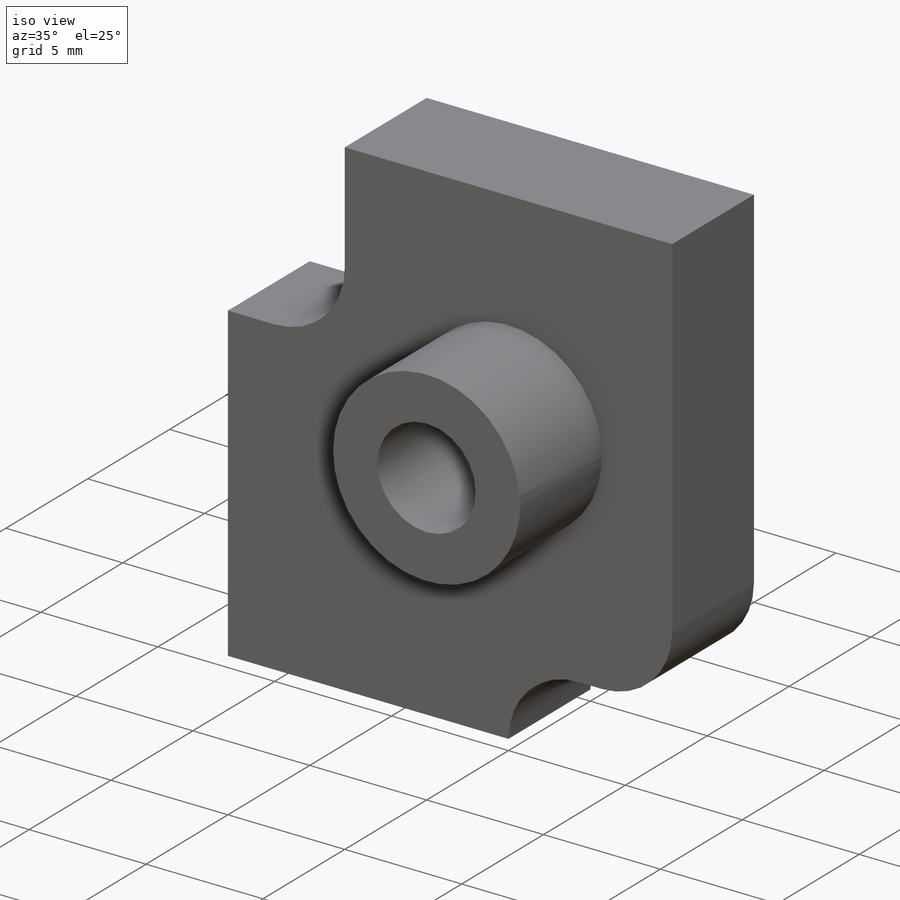
[diagram: iso view]
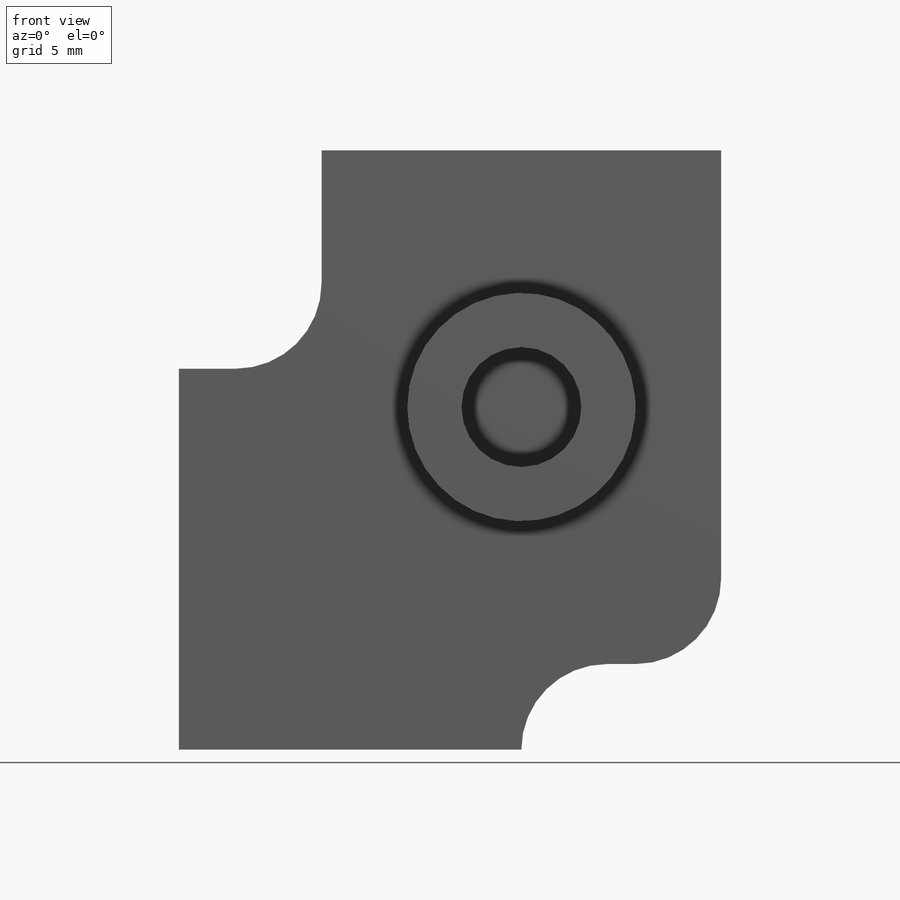
[diagram: front view]
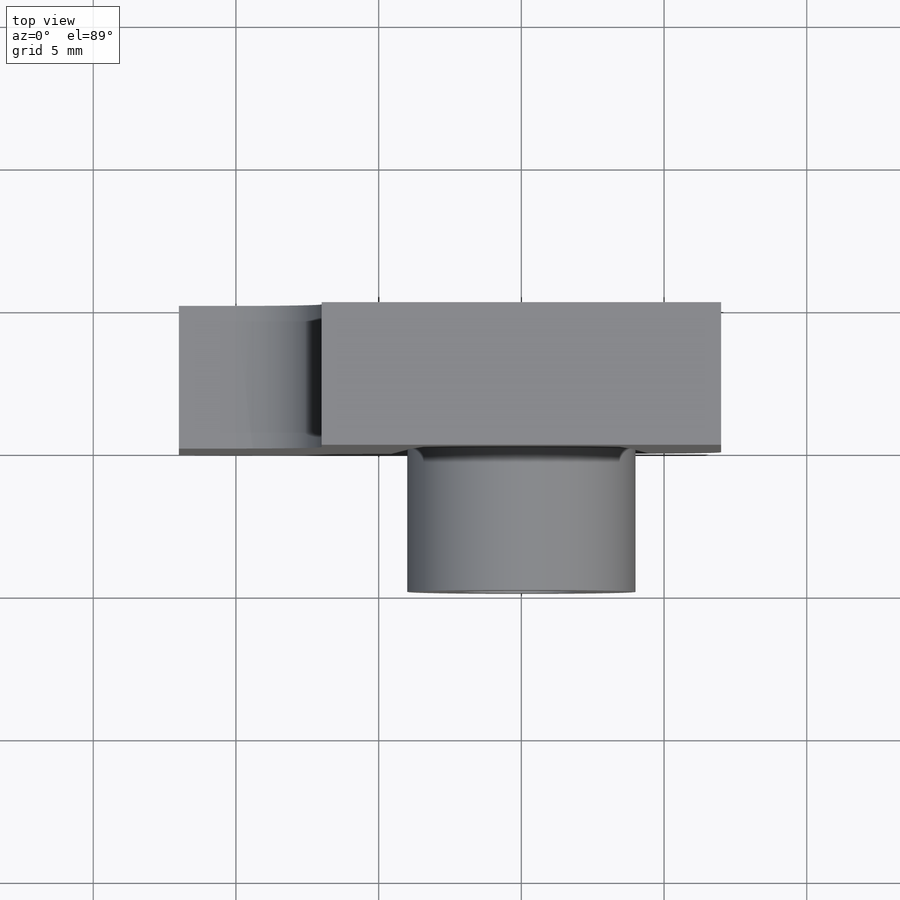
[diagram: top view]
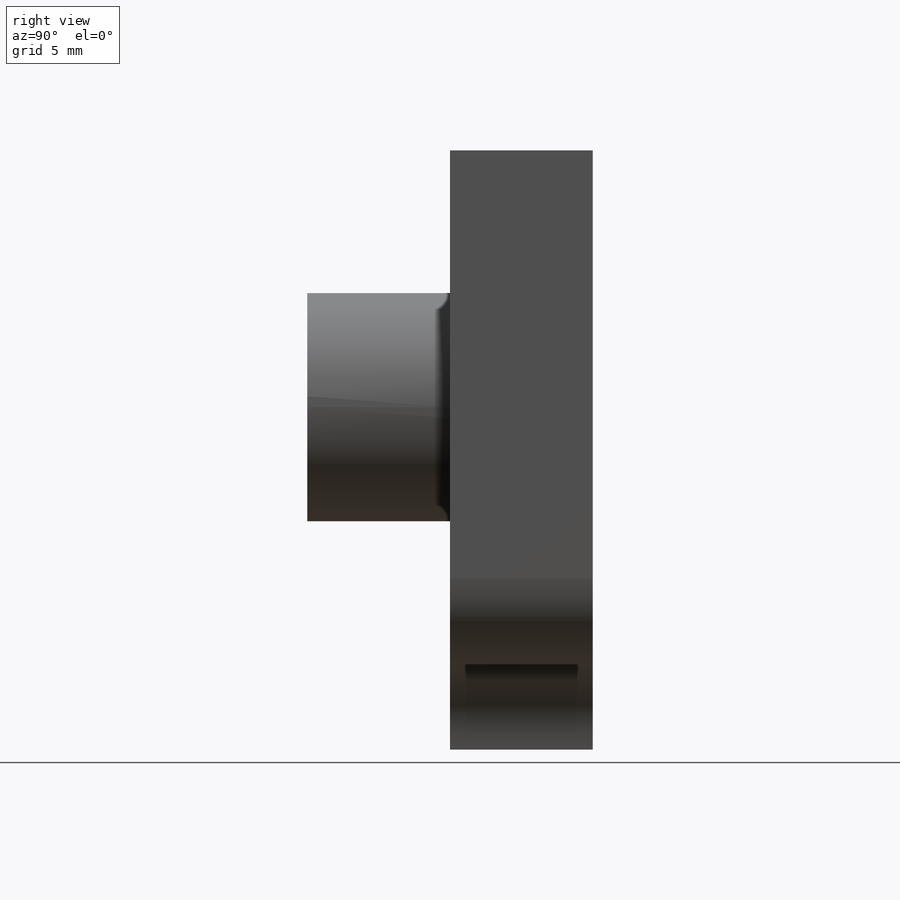
[diagram: right view]
SOLIDWORKS PART (.sldprt)
format: sldprt  version: not decoded by parser v0  size: 239,104 bytes
history: native  units: mm
features: sketch x4, extrude x3, material x1, cut_extrude x1, fillet x1 (+14 scaffold rows collapsed)
feature tree (24):
  scaffold x14  (default folders/planes/origin — collapsed)
  material  "Material <not specified>"
  sketch  "Sketch1"  dims[D1=14.0mm D2=18.0mm]
  extrude  "Extrude1"  Depth=5mm
  sketch  "Sketch2"  dims[D1=8.0mm]
  extrude  "Extrude2"  Depth=5mm
  sketch  "Sketch3"  dims[D1=4.2mm]
  cut_extrude  "Extrude3"  Depth=4mm
  sketch  "Sketch4"  dims[c1.D1=3.0mm c1.D2=3.0mm c2.D1=5.0mm]
  extrude  "Extrude5"  [1 undecoded]
  fillet  "Fillet1"  Radius=3mm
decode coverage: 8 of 9 modeling features carry decoded parameters
note: 1 parameter value undecoded
note: suppression state not decoded; provenance and decode notes live in map.json
